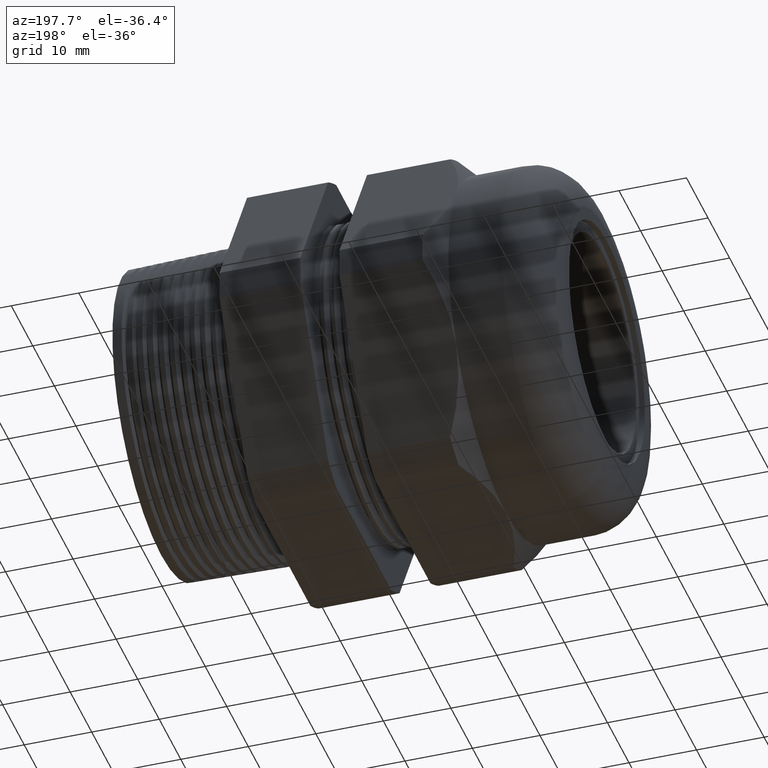
[diagram: clean part render]
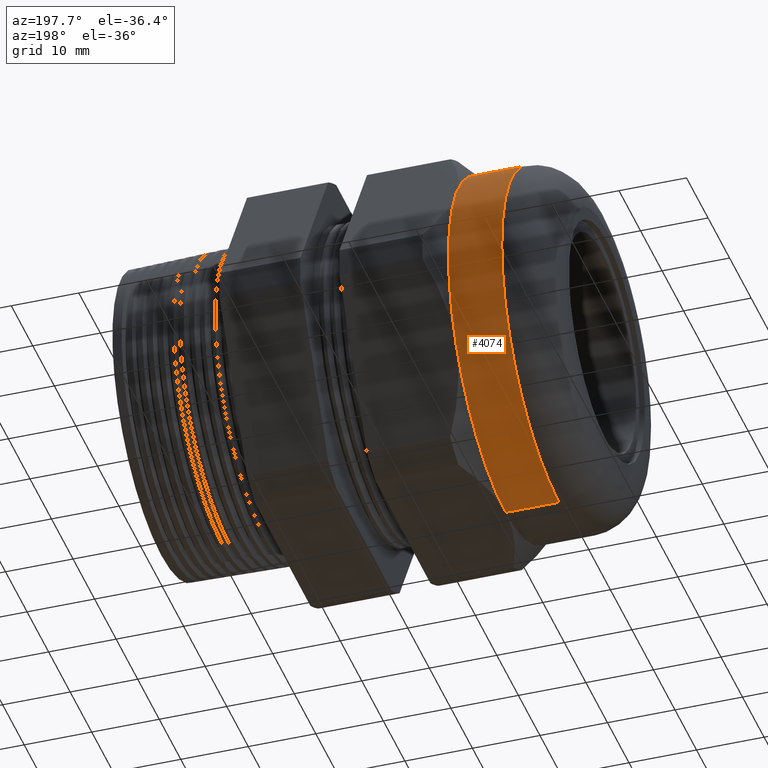
[diagram: same view with one face highlighted and labeled with its STEP entity id]
A machine part, auxiliary view. The second image highlights one B-rep face of the part: STEP entity #4074.
In plain terms, the highlighted cylindrical surface (partial cylindrical patch) has radius 26.543 mm, axis along (1, 0, 0).
Its self-contained STEP definition (entity closure, byte-faithful):
#116 = VERTEX_POINT ( 'NONE', #1470 ) ;
#118 = VERTEX_POINT ( 'NONE', #1469 ) ;
#163 = EDGE_CURVE ( 'NONE', #118, #116, #1521, .T. ) ;
#701 = VERTEX_POINT ( 'NONE', #2544 ) ;
#703 = VERTEX_POINT ( 'NONE', #2538 ) ;
#704 = EDGE_CURVE ( 'NONE', #116, #703, #2537, .T. ) ;
#705 = EDGE_LOOP ( 'NONE', ( #4069, #4063, #709, #4059, #711, #4062 ) ) ;
#707 = EDGE_CURVE ( 'NONE', #701, #703, #2529, .T. ) ;
#709 = ORIENTED_EDGE ( 'NONE', *, *, #707, .F. ) ;
#710 = VERTEX_POINT ( 'NONE', #2524 ) ;
#711 = ORIENTED_EDGE ( 'NONE', *, *, #714, .F. ) ;
#714 = EDGE_CURVE ( 'NONE', #710, #4050, #2522, .T. ) ;
#1469 = CARTESIAN_POINT ( 'NONE',  ( -1.919999999999999500, 0.0000000000000000000, -1.044999999999999900 ) ) ;
#1470 = CARTESIAN_POINT ( 'NONE',  ( -1.919999999999999500, 1.279755905108984100E-016, 1.044999999999999900 ) ) ;
#1513 = DIRECTION ( 'NONE',  ( 0.0000000000000000000, 0.0000000000000000000, 1.000000000000000000 ) ) ;
#1514 = DIRECTION ( 'NONE',  ( 1.000000000000000000, 0.0000000000000000000, 0.0000000000000000000 ) ) ;
#1515 = CARTESIAN_POINT ( 'NONE',  ( -1.919999999999999500, 0.0000000000000000000, 0.0000000000000000000 ) ) ;
#1516 = AXIS2_PLACEMENT_3D ( 'NONE', #1515, #1514, #1513 ) ;
#1521 = CIRCLE ( 'NONE', #1516, 1.044999999999999900 ) ;
#2518 = DIRECTION ( 'NONE',  ( 0.0000000000000000000, 0.0000000000000000000, -1.000000000000000000 ) ) ;
#2519 = DIRECTION ( 'NONE',  ( 1.000000000000000000, 0.0000000000000000000, 0.0000000000000000000 ) ) ;
#2520 = CARTESIAN_POINT ( 'NONE',  ( -1.609449999999999400, 0.0000000000000000000, 0.0000000000000000000 ) ) ;
#2521 = AXIS2_PLACEMENT_3D ( 'NONE', #2520, #2519, #2518 ) ;
#2522 = CIRCLE ( 'NONE', #2521, 1.045000000000000200 ) ;
#2524 = CARTESIAN_POINT ( 'NONE',  ( -1.609449999999999400, 0.0000000000000000000, -1.045000000000000400 ) ) ;
#2525 = DIRECTION ( 'NONE',  ( 0.0000000000000000000, 0.0000000000000000000, -1.000000000000000000 ) ) ;
#2526 = DIRECTION ( 'NONE',  ( 1.000000000000000000, 0.0000000000000000000, 0.0000000000000000000 ) ) ;
#2527 = CARTESIAN_POINT ( 'NONE',  ( -1.609449999999999400, 0.0000000000000000000, 0.0000000000000000000 ) ) ;
#2528 = AXIS2_PLACEMENT_3D ( 'NONE', #2527, #2526, #2525 ) ;
#2529 = CIRCLE ( 'NONE', #2528, 1.045000000000000200 ) ;
#2534 = DIRECTION ( 'NONE',  ( 1.000000000000000000, 0.0000000000000000000, 0.0000000000000000000 ) ) ;
#2535 = VECTOR ( 'NONE', #2534, 39.37007874015748100 ) ;
#2536 = CARTESIAN_POINT ( 'NONE',  ( 0.0000000000000000000, 1.279755905108984100E-016, 1.044999999999999900 ) ) ;
#2537 = LINE ( 'NONE', #2536, #2535 ) ;
#2538 = CARTESIAN_POINT ( 'NONE',  ( -1.609449999999999400, 0.0000000000000000000, 1.044999999999999700 ) ) ;
#2544 = CARTESIAN_POINT ( 'NONE',  ( -1.609449999999999400, 0.9049965469547388600, 0.5225000000000000800 ) ) ;
#3579 = DIRECTION ( 'NONE',  ( 0.0000000000000000000, 0.0000000000000000000, -1.000000000000000000 ) ) ;
#3580 = DIRECTION ( 'NONE',  ( 1.000000000000000000, 0.0000000000000000000, 0.0000000000000000000 ) ) ;
#3581 = CARTESIAN_POINT ( 'NONE',  ( -1.609449999999999400, 0.0000000000000000000, 0.0000000000000000000 ) ) ;
#3582 = AXIS2_PLACEMENT_3D ( 'NONE', #3581, #3580, #3579 ) ;
#3583 = CIRCLE ( 'NONE', #3582, 1.045000000000000200 ) ;
#3584 = CARTESIAN_POINT ( 'NONE',  ( -1.609449999999999400, 0.9049965469547388600, -0.5224999999999998500 ) ) ;
#3650 = DIRECTION ( 'NONE',  ( 1.000000000000000000, 0.0000000000000000000, 0.0000000000000000000 ) ) ;
#3651 = VECTOR ( 'NONE', #3650, 39.37007874015748100 ) ;
#3652 = CARTESIAN_POINT ( 'NONE',  ( 0.0000000000000000000, 0.0000000000000000000, -1.044999999999999900 ) ) ;
#3656 = LINE ( 'NONE', #3652, #3651 ) ;
#3659 = DIRECTION ( 'NONE',  ( 0.0000000000000000000, 0.0000000000000000000, -1.000000000000000000 ) ) ;
#3660 = DIRECTION ( 'NONE',  ( 1.000000000000000000, 0.0000000000000000000, 0.0000000000000000000 ) ) ;
#3661 = AXIS2_PLACEMENT_3D ( 'NONE', #3663, #3660, #3659 ) ;
#3663 = CARTESIAN_POINT ( 'NONE',  ( 0.0000000000000000000, 0.0000000000000000000, 0.0000000000000000000 ) ) ;
#3664 = CYLINDRICAL_SURFACE ( 'NONE', #3661, 1.044999999999999900 ) ;
#3665 = FACE_OUTER_BOUND ( 'NONE', #705, .T. ) ;
#4049 = EDGE_CURVE ( 'NONE', #4050, #701, #3583, .T. ) ;
#4050 = VERTEX_POINT ( 'NONE', #3584 ) ;
#4059 = ORIENTED_EDGE ( 'NONE', *, *, #4049, .F. ) ;
#4062 = ORIENTED_EDGE ( 'NONE', *, *, #4077, .F. ) ;
#4063 = ORIENTED_EDGE ( 'NONE', *, *, #704, .T. ) ;
#4069 = ORIENTED_EDGE ( 'NONE', *, *, #163, .T. ) ;
#4074 = ADVANCED_FACE ( 'NONE', ( #3665 ), #3664, .T. ) ;
#4077 = EDGE_CURVE ( 'NONE', #118, #710, #3656, .T. ) ;